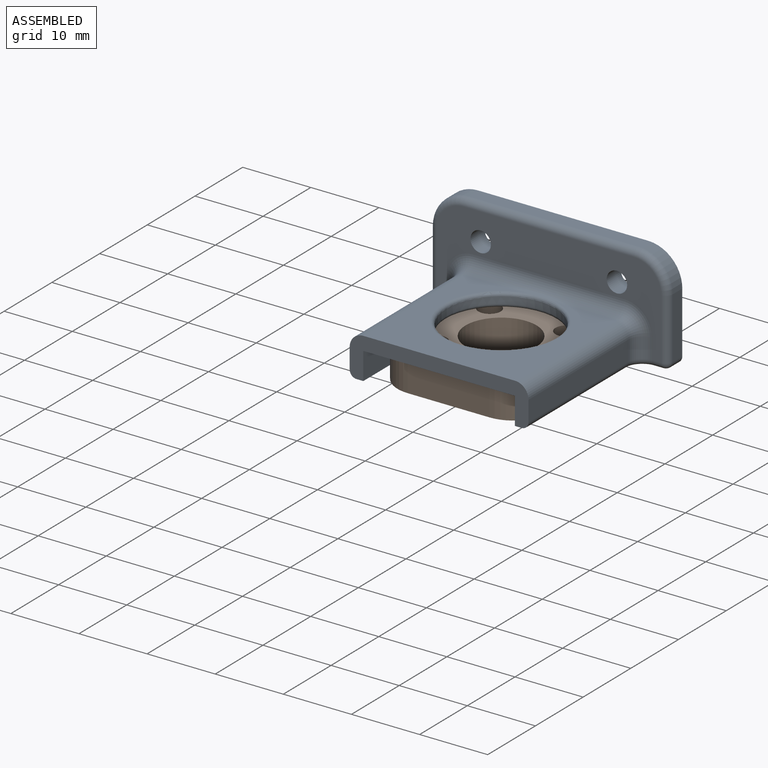
[diagram: assembled view]
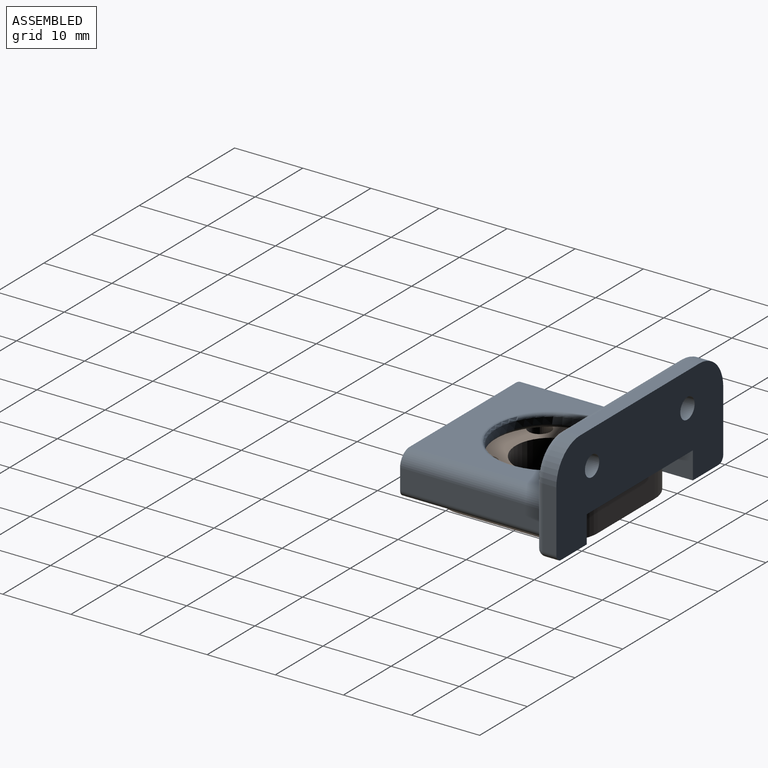
[diagram: assembled view, second angle]
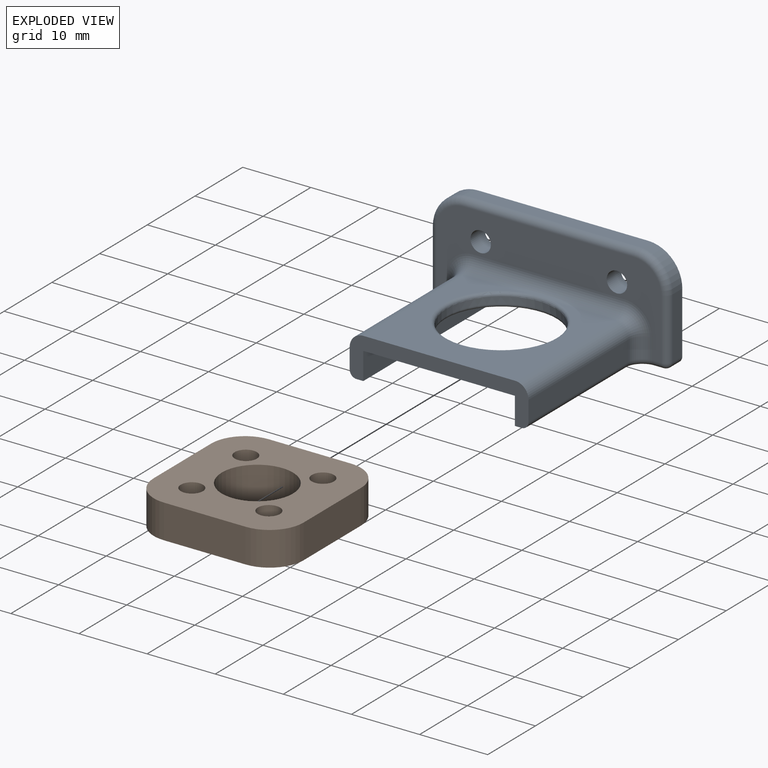
[diagram: exploded view]
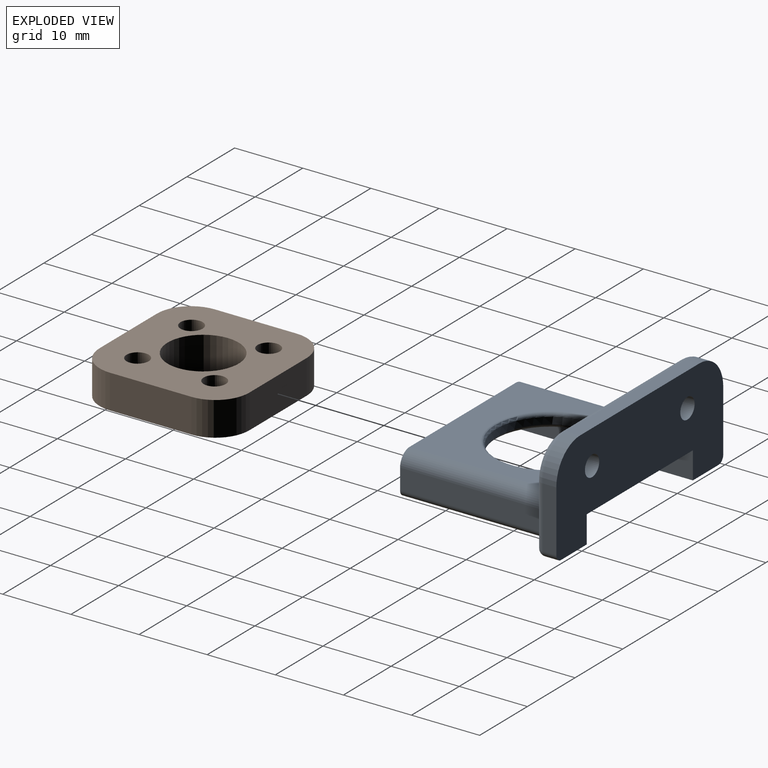
[diagram: exploded view, second angle]
ASSEMBLY  parts=2 mates=2
PART A: 44 faces, bbox 35.8x26x15.4 mm
  f0: plane 26x5.38mm, normal (0,0,-1), area 36.7mm2, adj f1,f8,f17,f18,f28,f29,f30
  f1: plane 26.25x6mm, normal (0,-1,0), area 66.4mm2, adj f0,f3,f4,f12,f13,f18,f19,f20
  f2: cylinder r=8mm len=16mm, axis (0,0,-1), area 50.4mm2, adj f41,f42,f43
  f3: plane 21x3mm, normal (-1,0,0), area 63mm2, adj f1,f21,f23,f28
  f4: plane 21x3mm, normal (1,0,0), area 63mm2, adj f1,f22,f27,f40
  f5: plane 25x2mm, normal (0,0,1), area 50mm2, adj f8,f14,f15,f34
  f6: cylinder r=1.5mm len=3mm, axis (0,-1,0), area 28.3mm2, adj f8,f9
  f7: cylinder r=1.5mm len=3mm, axis (0,-1,0), area 28.3mm2, adj f8,f9
  f8: plane 35x15mm, normal (0,1,0), area 410.7mm2, adj f0,f5,f6,f7,f10,f11,f12,f14
  f9: plane 33x13mm, normal (0,-1,0), area 203.1mm2, adj f6,f7,f23,f24,f25,f26,f27,f30
  f10: plane 9x2mm, normal (1,0,0), area 18mm2, adj f8,f14,f16,f36
  f11: plane 9x2mm, normal (-1,0,0), area 18mm2, adj f8,f15,f17,f32
  f12: plane 26x5.38mm, normal (0,0,-1), area 36.7mm2, adj f1,f8,f16,f19,f38,f39,f40
  f13: plane 22.25x21mm, normal (0,0,1), area 242.2mm2, adj f1,f21,f22,f25,f42
  f14: cylinder r=5mm len=5mm, axis (0,-1,0), area 15.7mm2, adj f5,f8,f10,f35
  f15: cylinder r=5mm len=5mm, axis (0,1,0), area 15.7mm2, adj f5,f8,f11,f33
  f16: cylinder r=1mm len=2mm, axis (0,1,0), area 3.1mm2, adj f8,f10,f12,f37
  f17: cylinder r=1mm len=2mm, axis (0,-1,0), area 3.1mm2, adj f0,f8,f11,f31
  f18: plane 26x4mm, normal (1,0,0), area 104mm2, adj f0,f1,f8,f20
  f19: plane 26x4mm, normal (-1,0,0), area 104mm2, adj f1,f8,f12,f20
  f20: plane 26x22.25mm, normal (0,0,-1), area 351.5mm2, adj f1,f8,f18,f19,f41
  f21: cylinder r=2mm len=21mm, axis (0,1,0), area 66mm2, adj f1,f3,f13,f24
  f22: cylinder r=2mm len=21mm, axis (0,-1,0), area 66mm2, adj f1,f4,f13,f26
  f23: cylinder r=2mm len=3mm, axis (0,0,-1), area 9.4mm2, adj f3,f9,f24,f29
  f24: torus R=4mm, axis (0,-1,0), area 13.5mm2, adj f9,f21,f23,f25
  f25: cylinder r=2mm len=22.25mm, axis (-1,0,0), area 68.4mm2, adj f9,f13,f24,f26,f43
  f26: torus R=4mm, axis (0,-1,0), area 13.5mm2, adj f9,f22,f25,f27
  f27: cylinder r=2mm len=3mm, axis (0,0,1), area 9.4mm2, adj f4,f9,f26,f39
  f28: cylinder r=1mm len=21mm, axis (0,-1,0), area 33mm2, adj f0,f1,f3,f29
  f29: torus R=3mm, axis (0,0,1), area 5.8mm2, adj f0,f23,f28,f30
  f30: cylinder r=1mm len=1.38mm, axis (1,0,0), area 2.2mm2, adj f0,f9,f29,f31
  f31: sphere r=1mm, area 1.6mm2, adj f17,f30,f32
  f32: cylinder r=1mm len=9mm, axis (0,0,-1), area 14.1mm2, adj f9,f11,f31,f33
  f33: torus R=4mm, axis (0,-1,0), area 11.4mm2, adj f9,f15,f32,f34
  f34: cylinder r=1mm len=25mm, axis (-1,0,0), area 39.3mm2, adj f5,f9,f33,f35
  f35: torus R=4mm, axis (0,-1,0), area 11.4mm2, adj f9,f14,f34,f36
  f36: cylinder r=1mm len=9mm, axis (0,0,1), area 14.1mm2, adj f9,f10,f35,f37
  f37: sphere r=1mm, area 1.6mm2, adj f16,f36,f38
  f38: cylinder r=1mm len=1.38mm, axis (1,0,0), area 2.2mm2, adj f9,f12,f37,f39
  f39: torus R=3mm, axis (0,0,1), area 5.8mm2, adj f12,f27,f38,f40
  f40: cylinder r=1mm len=21mm, axis (0,1,0), area 33mm2, adj f1,f4,f12,f39
  f41: torus R=8.5mm, axis (0,0,-1), area 40.4mm2, adj f2,f20
  f42: torus R=8.5mm, axis (0,0,1), area 35.9mm2, adj f2,f13,f43
  f43: bspline ~6.89x1.16mm, area 4mm2, adj f2,f25,f42
PART B: 15 faces, bbox 22x22x5 mm
  f0: plane 12x5mm, normal (0,1,0), area 60mm2, adj f9,f10,f11,f14
  f1: plane 12x5mm, normal (-1,0,0), area 60mm2, adj f9,f10,f11,f12
  f2: plane 12x5mm, normal (0,-1,0), area 60mm2, adj f9,f10,f12,f13
  f3: cylinder r=5.22mm len=10.45mm, axis (0,0,-1), area 164.1mm2, adj f9,f10
  f4: cylinder r=1.62mm len=5mm, axis (0,0,-1), area 51.1mm2, adj f9,f10
  f5: cylinder r=1.62mm len=5mm, axis (0,0,-1), area 51.1mm2, adj f9,f10
  f6: cylinder r=1.62mm len=5mm, axis (0,0,-1), area 51.1mm2, adj f9,f10
  f7: cylinder r=1.62mm len=5mm, axis (0,0,-1), area 51.1mm2, adj f9,f10
  f8: plane 12x5mm, normal (1,0,0), area 60mm2, adj f9,f10,f13,f14
  f9: plane 22x22mm, normal (0,0,1), area 343.6mm2, adj f0,f1,f2,f3,f4,f5,f6,f7
  f10: plane 22x22mm, normal (0,0,-1), area 343.6mm2, adj f0,f1,f2,f3,f4,f5,f6,f7
  f11: cylinder r=5mm len=5mm, axis (0,0,1), area 39.3mm2, adj f0,f1,f9,f10
  f12: cylinder r=5mm len=5mm, axis (0,0,-1), area 39.3mm2, adj f1,f2,f9,f10
  f13: cylinder r=5mm len=5mm, axis (0,0,1), area 39.3mm2, adj f2,f8,f9,f10
  f14: cylinder r=5mm len=5mm, axis (0,0,-1), area 39.3mm2, adj f0,f8,f9,f10
PLACE A at identity fixed
PLACE B t=(0,-11.5,-1.01)mm
MATE parallel A.f1 <-> B.f2  axis (0,-1,0) through (0,-24.5,6)mm
MATE cylindrical A.f2 <-> B.f3  axis (0,0,-1) through (0,-11.5,4.5)mm
